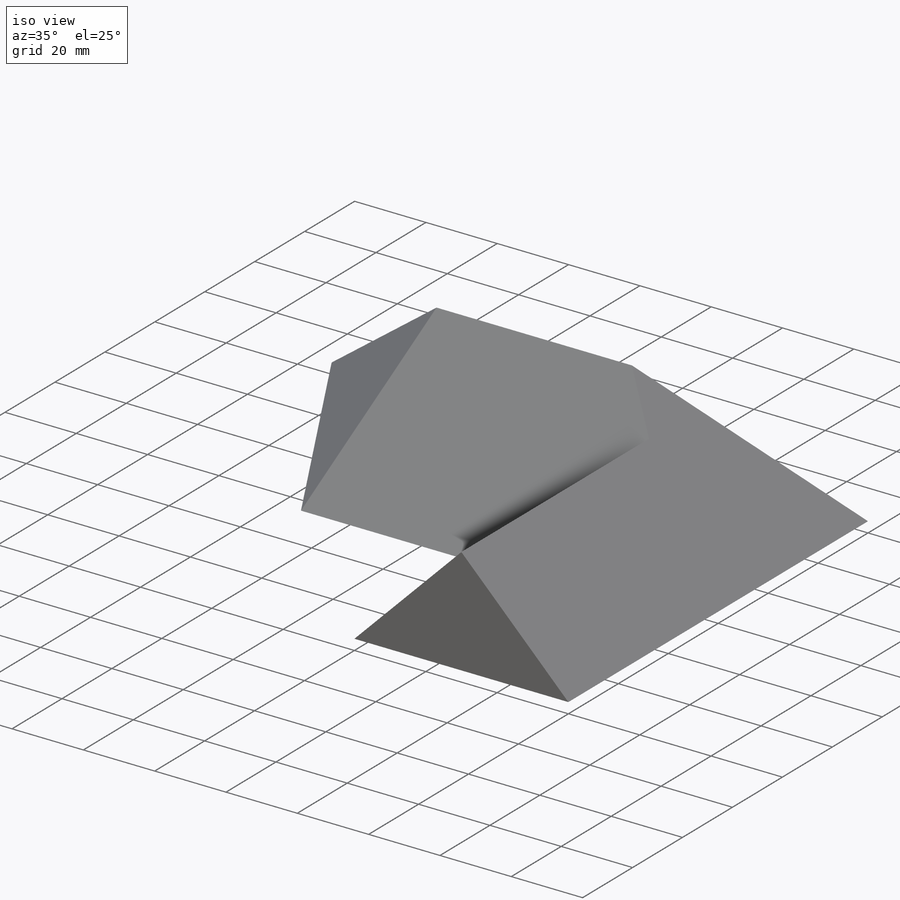
[diagram: iso view]
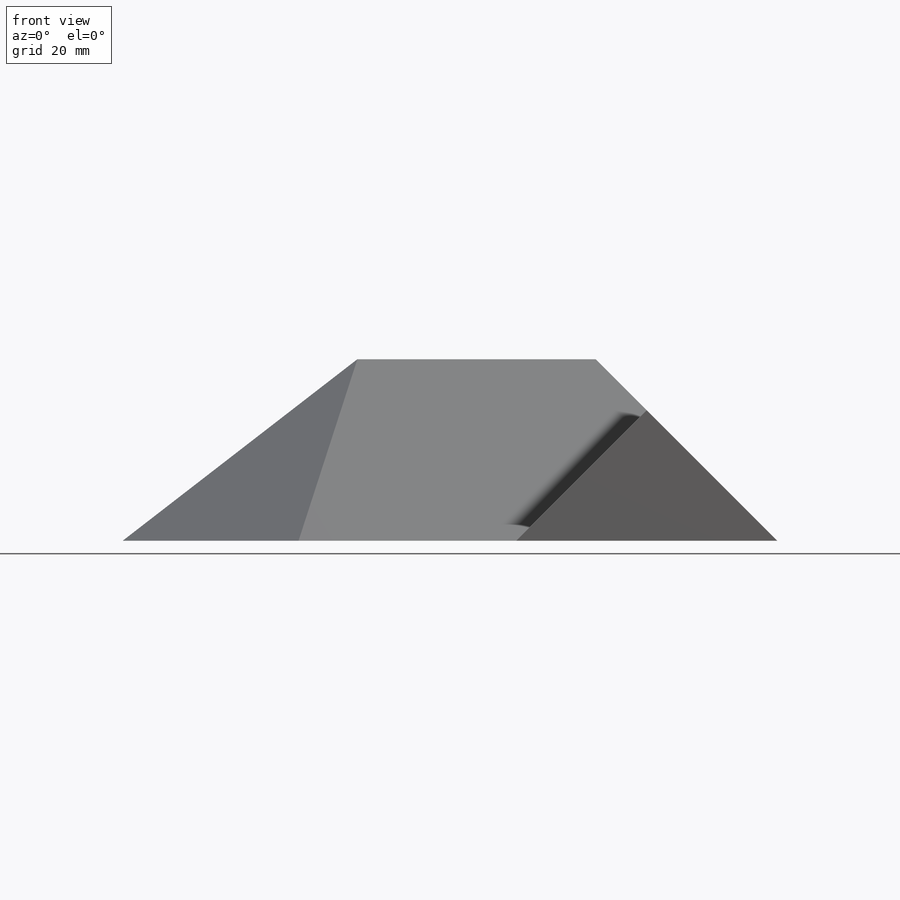
[diagram: front view]
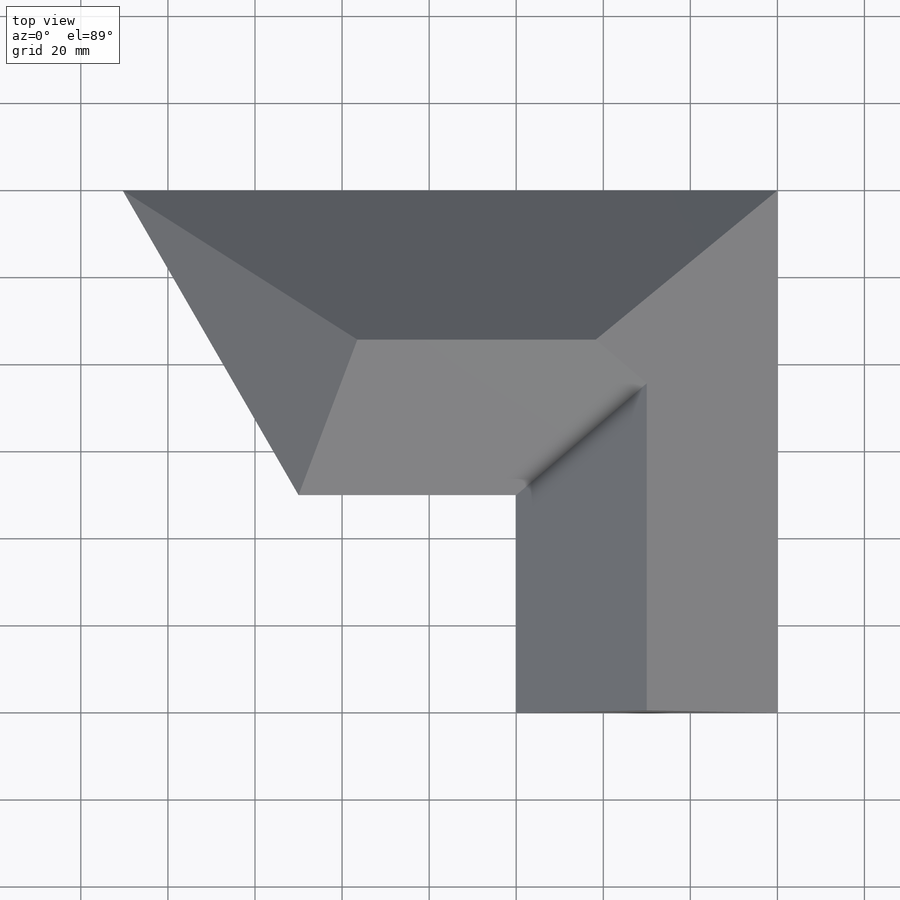
[diagram: top view]
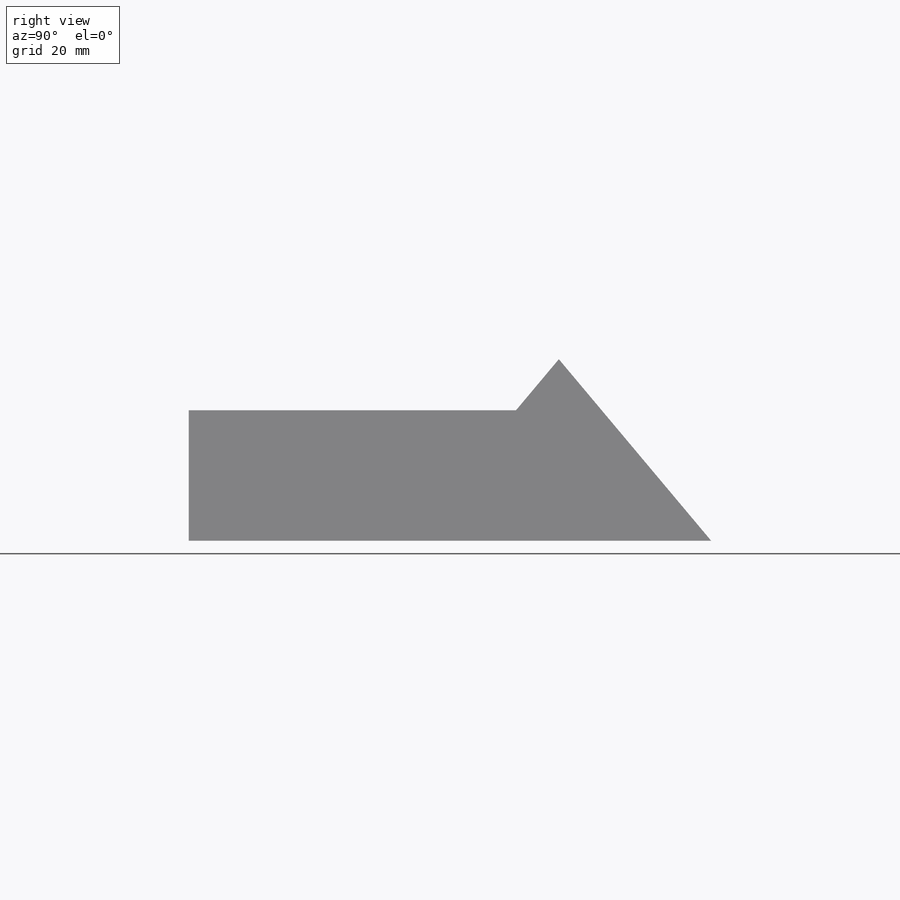
[diagram: right view]
SOLIDWORKS PART (.sldprt)
format: sldprt  version: not decoded by parser v0  size: 205,312 bytes
history: native  units: mm
features: sketch x8, cut_extrude x3, plane x3, extrude x2, material x1 (+16 scaffold rows collapsed)
feature tree (33):
  scaffold x16  (default folders/planes/origin — collapsed)
  material  "Material <not specified>"
  sketch  "Sketch1"  dims[c1.D1=60.0mm c1.D2=~42.48053mm c2.D2=45.0deg]
  extrude  "Extrude1"  Depth=120mm
  sketch  "Sketch2"  dims[c1.D1=70.0mm c1.D2=35.0mm c2.D2=50.0deg]
  extrude  "Extrude2"  Depth=110mm
  sketch  "Sketch3"
  cut_extrude  "Extrude3"  [1 undecoded]
  sketch  "Sketch4"
  cut_extrude  "Extrude4"  [1 undecoded]
  sketch  "Sketch5"  dims[c1.D1=~56.824764mm c2.D1=30.0deg]
  plane  "Plane1"  Offset=50mm
  sketch  "Sketch6"
  plane  "Plane2"
  sketch  "Sketch7"  dims[c1.D1=~62.067117mm c2.D1=55.0deg]
  cut_extrude  "Extrude5"  [1 undecoded]
  sketch  "Sketch8"  dims[c1.D1=~85.873727mm c2.D1=30.0deg]
  plane  "AC Dihedral Angle Plane"
decode coverage: 7 of 13 modeling features carry decoded parameters
note: ~ marks probable driven/reference dimensions
note: 3 parameter values undecoded
summary: no parameter record found for 3 features
note: suppression state not decoded; provenance and decode notes live in map.json
